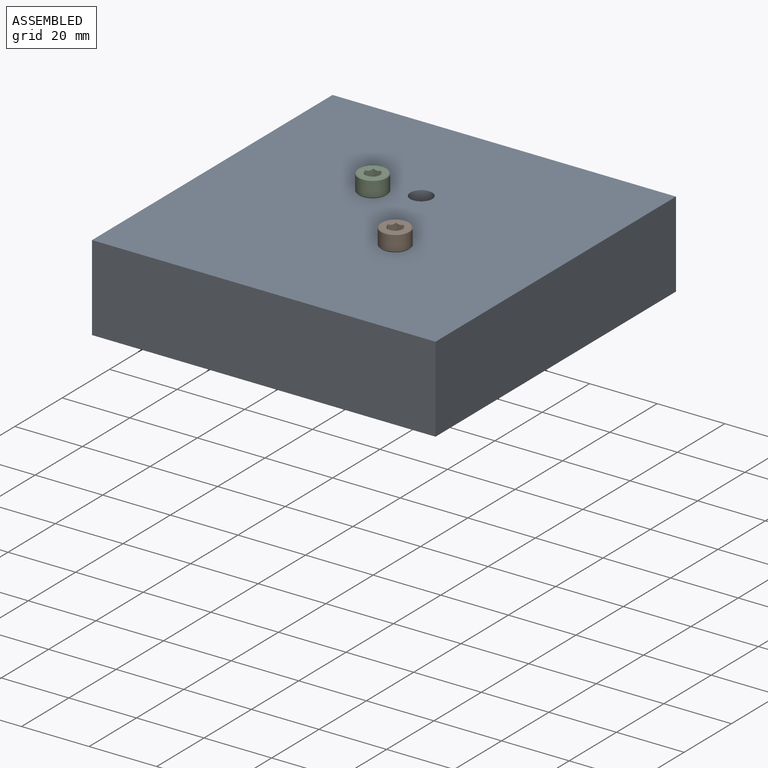
[diagram: assembled view]
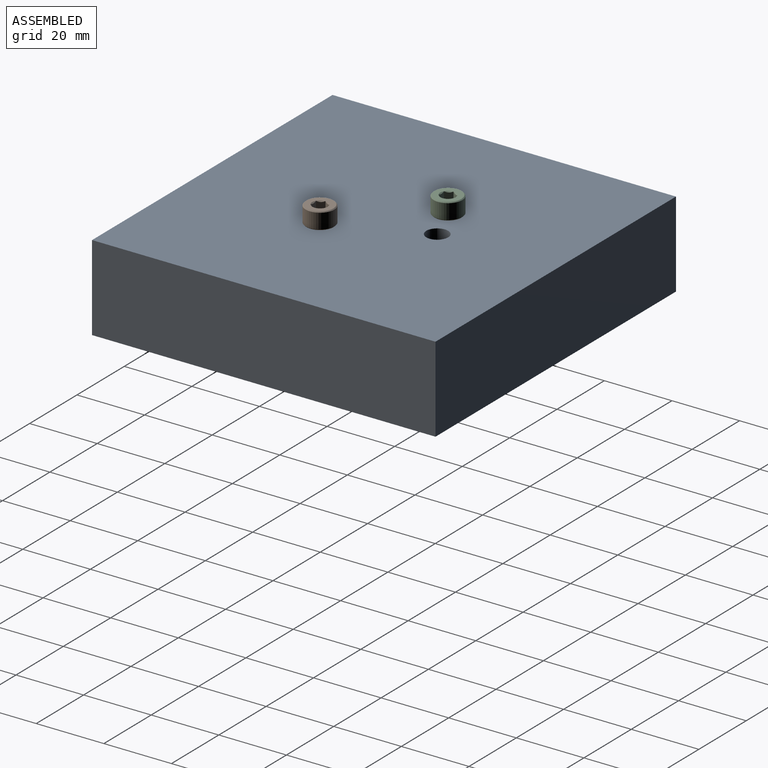
[diagram: assembled view, second angle]
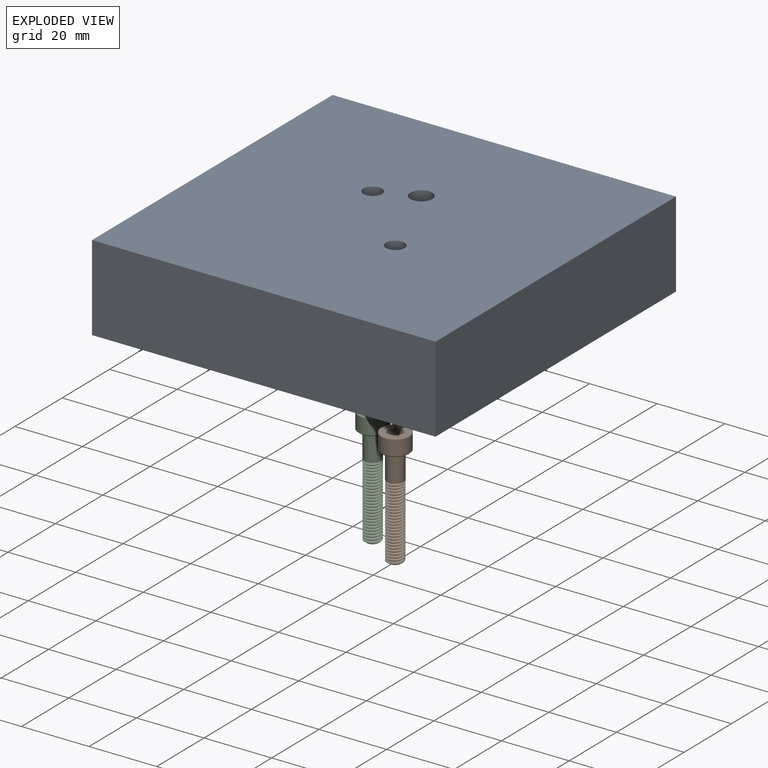
[diagram: exploded view]
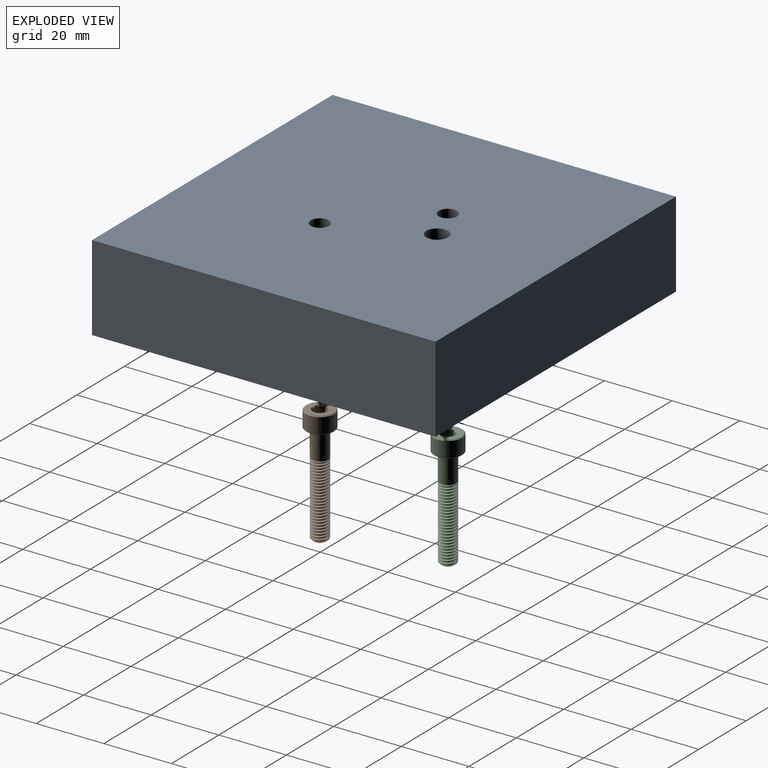
[diagram: exploded view, second angle]
ASSEMBLY  parts=3 mates=4
PART A: 9 faces, bbox 101.6x101.6x25.4 mm
  f0: plane 101.6x25.4mm, normal (0,-1,0), area 2580.6mm2, adj f1,f3,f4,f5
  f1: plane 101.6x25.4mm, normal (1,0,0), area 2580.6mm2, adj f0,f2,f4,f5
  f2: plane 101.6x25.4mm, normal (0,1,0), area 2580.6mm2, adj f1,f3,f4,f5
  f3: plane 101.6x25.4mm, normal (-1,0,0), area 2580.6mm2, adj f0,f2,f4,f5
  f4: plane 101.6x101.6mm, normal (0,0,1), area 10241.9mm2, adj f0,f1,f2,f3,f6,f7,f8
  f5: plane 101.6x101.6mm, normal (0,0,-1), area 10241.9mm2, adj f0,f1,f2,f3,f6,f7,f8
  f6: cylinder r=3.25mm len=25.4mm, axis (0,0,1), area 518.7mm2, adj f4,f5
  f7: cylinder r=2.75mm len=25.4mm, axis (0,0,1), area 438.9mm2, adj f4,f5
  f8: cylinder r=2.75mm len=25.4mm, axis (0,0,1), area 438.9mm2, adj f4,f5
PART B: 53 faces, bbox 9.4x9.4x36 mm
  f0: bspline ~22.7x5.77mm, area 230mm2, adj f2,f4,f5,f6,f7,f8,f9,f10
  f1: bspline ~22.3x5.77mm, area 229.1mm2, adj f2,f3,f4,f5,f6,f7,f8,f9
  f2: cylinder r=1.98mm len=21.82mm, axis (0,0,-1), area 135.2mm2, adj f0,f1,f31,f34
  f3: cylinder r=2.5mm len=7.98mm, axis (0,0,1), area 123.9mm2, adj f1,f4,f33,f37
  f4: cylinder r=2.5mm len=5mm, axis (0,0,1), area 1.6mm2, adj f0,f1,f3,f5
  f5: cylinder r=2.5mm len=5mm, axis (0,0,1), area 1.6mm2, adj f0,f1,f4,f6
  f6: cylinder r=2.5mm len=5mm, axis (0,0,1), area 1.6mm2, adj f0,f1,f5,f7
  f7: cylinder r=2.5mm len=5mm, axis (0,0,1), area 1.6mm2, adj f0,f1,f6,f8
  f8: cylinder r=2.5mm len=5mm, axis (0,0,1), area 1.6mm2, adj f0,f1,f7,f9
  f9: cylinder r=2.5mm len=5mm, axis (0,0,1), area 1.6mm2, adj f0,f1,f8,f10
  f10: cylinder r=2.5mm len=5mm, axis (0,0,1), area 1.6mm2, adj f0,f1,f9,f11
  f11: cylinder r=2.5mm len=5mm, axis (0,0,1), area 1.6mm2, adj f0,f1,f10,f12
  f12: cylinder r=2.5mm len=5mm, axis (0,0,1), area 1.6mm2, adj f0,f1,f11,f13
  f13: cylinder r=2.5mm len=5mm, axis (0,0,1), area 1.6mm2, adj f0,f1,f12,f14
  f14: cylinder r=2.5mm len=5mm, axis (0,0,1), area 1.6mm2, adj f0,f1,f13,f15
  f15: cylinder r=2.5mm len=5mm, axis (0,0,1), area 1.6mm2, adj f0,f1,f14,f16
  f16: cylinder r=2.5mm len=5mm, axis (0,0,1), area 1.6mm2, adj f0,f1,f15,f17
  f17: cylinder r=2.5mm len=5mm, axis (0,0,1), area 1.6mm2, adj f0,f1,f16,f18
  f18: cylinder r=2.5mm len=5mm, axis (0,0,1), area 1.6mm2, adj f0,f1,f17,f19
  f19: cylinder r=2.5mm len=5mm, axis (0,0,1), area 1.6mm2, adj f0,f1,f18,f20
  f20: cylinder r=2.5mm len=5mm, axis (0,0,1), area 1.6mm2, adj f0,f1,f19,f21
  f21: cylinder r=2.5mm len=5mm, axis (0,0,1), area 1.6mm2, adj f0,f1,f20,f22
  f22: cylinder r=2.5mm len=5mm, axis (0,0,1), area 1.6mm2, adj f0,f1,f21,f23
  f23: cylinder r=2.5mm len=5mm, axis (0,0,1), area 1.6mm2, adj f0,f1,f22,f24
  f24: cylinder r=2.5mm len=5mm, axis (0,0,1), area 1.6mm2, adj f0,f1,f23,f25
  f25: cylinder r=2.5mm len=5mm, axis (0,0,1), area 1.6mm2, adj f0,f1,f24,f26
  f26: cylinder r=2.5mm len=5mm, axis (0,0,1), area 1.6mm2, adj f0,f1,f25,f27
  f27: cylinder r=2.5mm len=5mm, axis (0,0,1), area 1.6mm2, adj f0,f1,f26,f28
  f28: cylinder r=2.5mm len=5mm, axis (0,0,1), area 1.6mm2, adj f0,f1,f27,f29
  f29: cylinder r=2.5mm len=5mm, axis (0,0,1), area 1.6mm2, adj f0,f1,f28,f30
  f30: cylinder r=2.5mm len=5mm, axis (0,0,1), area 1.4mm2, adj f0,f1,f29,f31
  f31: cone r=1.73mm half-angle=55deg, axis (0,0,-1), area 7.9mm2, adj f0,f1,f2,f30,f32
  f32: plane 3.45x3.45mm, normal (0,0,1), area 9.4mm2, adj f31
  f33: cone r=2.5mm half-angle=70deg, axis (0,0,-1), area 3.3mm2, adj f0,f1,f3,f34
  f34: plane 3.87x2.39mm, normal (0,0,1), area 0.7mm2, adj f0,f1,f2,f33
  f35: cylinder r=4.25mm len=8.5mm, axis (0,0,1), area 119.9mm2, adj f51,f52
  f36: plane 8.74x8.74mm, normal (0,0,-1), area 33.4mm2, adj f38,f39,f40,f41,f42,f43,f51
  f37: plane 7.99x7.99mm, normal (0,0,1), area 30.5mm2, adj f3,f52
  f38: cone r=2.31mm half-angle=45deg, axis (0,0,-1), area 0mm2, adj f36,f45
  f39: cone r=2.31mm half-angle=45deg, axis (0,0,-1), area 0mm2, adj f36,f46
  f40: cone r=2.31mm half-angle=45deg, axis (0,0,-1), area 0mm2, adj f36,f47
  f41: cone r=2.31mm half-angle=45deg, axis (0,0,-1), area 0mm2, adj f36,f48
  f42: cone r=2.31mm half-angle=45deg, axis (0,0,-1), area 0mm2, adj f36,f49
  f43: cone r=2.31mm half-angle=45deg, axis (0,0,-1), area 0mm2, adj f36,f50
  f44: plane 4.62x4mm, normal (0,0,-1), area 13.9mm2, adj f45,f46,f47,f48,f49,f50
  f45: plane 3.88x2.88mm, normal (-0.5,-0.87,0), area 6.5mm2, adj f38,f44,f46,f50
  f46: plane 3.88x3.19mm, normal (-1,0,0), area 6.5mm2, adj f39,f44,f45,f47
  f47: plane 3.88x2.88mm, normal (-0.5,0.87,0), area 6.5mm2, adj f40,f44,f46,f48
  f48: plane 3.88x2.88mm, normal (0.5,0.87,0), area 6.5mm2, adj f41,f44,f47,f49
  f49: plane 3.88x3.19mm, normal (1,0,0), area 6.5mm2, adj f42,f44,f48,f50
  f50: plane 3.88x2.88mm, normal (0.5,-0.87,0), area 6.5mm2, adj f43,f44,f45,f49
  f51: cone r=4mm half-angle=45deg, axis (0,0,1), area 9.3mm2, adj f35,f36
  f52: cone r=4.25mm half-angle=45deg, axis (0,0,-1), area 9.3mm2, adj f35,f37
PART C: same geometry as B
PLACE A t=(-17.31,20.75,15.85)mm
PLACE B rot(axis=(0.71,0.71,0),180deg) t=(-6.17,9.61,11.25)mm
PLACE C rot(axis=(0.71,0.71,0),180deg) t=(-28.44,31.88,11.25)mm
MATE planar C.f2 <-> A.f4  axis (0,0,-1) through (-28.44,31.88,41.25)mm
MATE cylindrical A.f7 <-> C.f2  axis (0,0,1) through (-28.44,31.88,41.25)mm
MATE planar B.f2 <-> A.f4  axis (0,0,-1) through (-6.17,9.61,41.25)mm
MATE cylindrical B.f2 <-> A.f8  axis (0,0,-1) through (-6.17,9.61,41.25)mm
